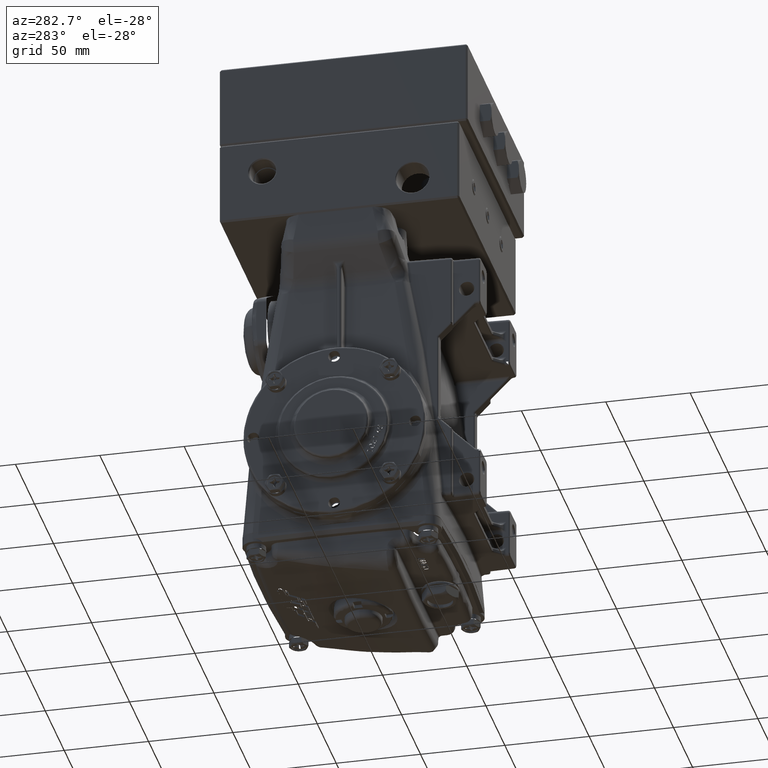
[diagram: clean part render]
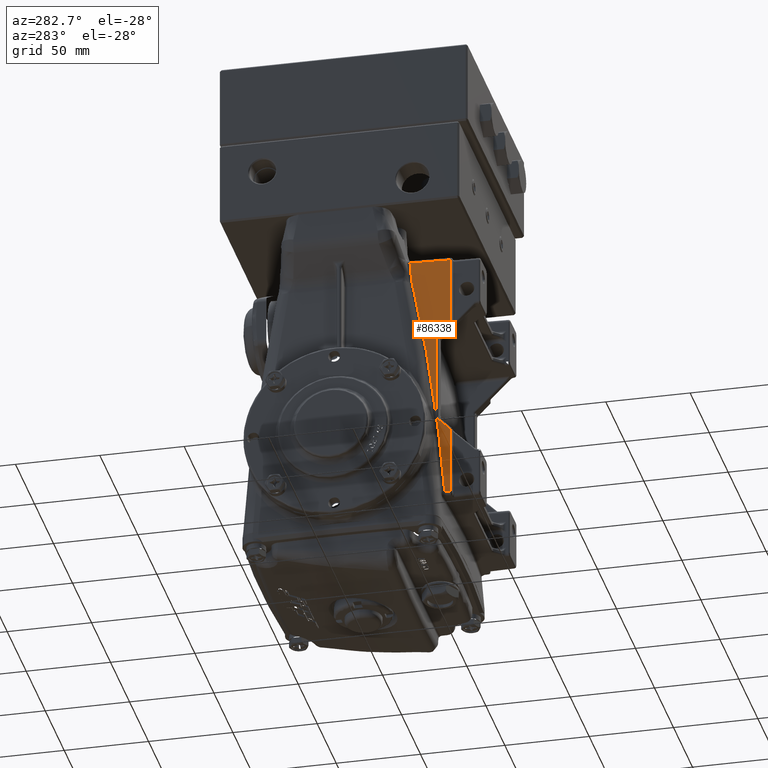
[diagram: same view with one face highlighted and labeled with its STEP entity id]
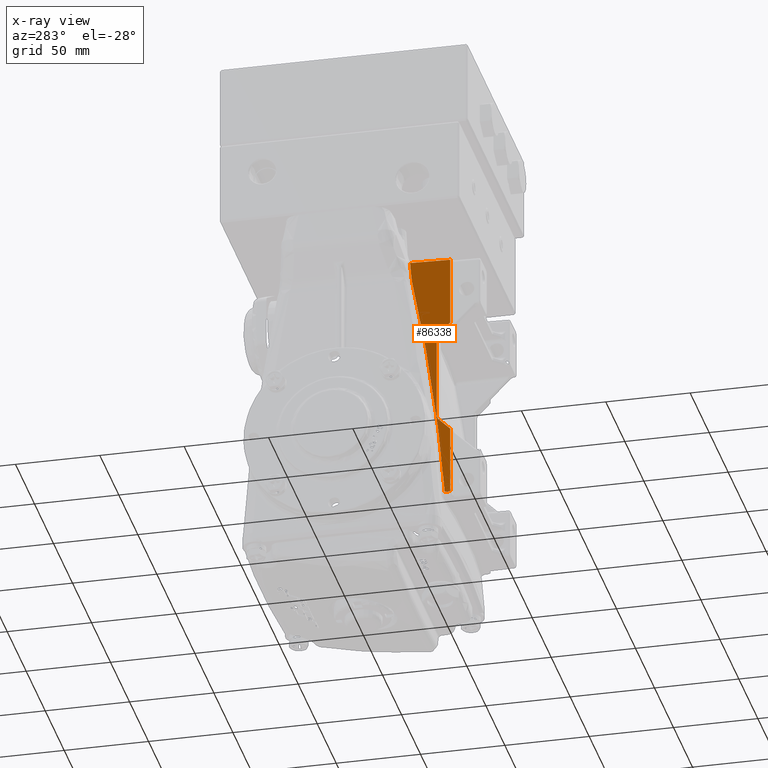
[diagram: x-ray of the same camera — body ghosted, the highlighted face saturated]
A machine part, auxiliary view. The second image highlights one B-rep face of the part: STEP entity #86338.
The next image is the same camera in x-ray: the body ghosted, the highlighted face saturated — about 0% of this face is hidden behind the body in this view.
In plain terms, the highlighted planar face has unit normal (-0.9998, -0.0175, 0).
Its self-contained STEP definition (entity closure, byte-faithful):
#1847 = CARTESIAN_POINT ( 'NONE',  ( -2.019544546098117621, -2.481002063245562717, -1.350265200022809697 ) ) ;
#2579 = CARTESIAN_POINT ( 'NONE',  ( -2.027510179900914533, -2.024651208318652085, 1.676761298908300279 ) ) ;
#4071 = VERTEX_POINT ( 'NONE', #42970 ) ;
#4995 = EDGE_CURVE ( 'NONE', #46811, #4071, #25992, .T. ) ;
#5358 = CARTESIAN_POINT ( 'NONE',  ( -2.024125852835092942, -2.218539176065493113, 0.09903116809614825877 ) ) ;
#5938 = CARTESIAN_POINT ( 'NONE',  ( -2.024830165668790816, -2.178189120846862004, 2.703559040577215189 ) ) ;
#6397 = CARTESIAN_POINT ( 'NONE',  ( -2.025042204343225016, -2.166041433324302101, 2.642488491357046332 ) ) ;
#6520 = B_SPLINE_CURVE_WITH_KNOTS ( 'NONE', 3,
 ( #51695, #5358, #84543, #24628 ),
 .UNSPECIFIED., .F., .F.,
 ( 4, 4 ),
 ( 0.000000000000000000, 0.0001516632036106965958 ),
 .UNSPECIFIED. ) ;
#8267 = EDGE_CURVE ( 'NONE', #35373, #57875, #18536, .T. ) ;
#8733 = CARTESIAN_POINT ( 'NONE',  ( -2.030912172984652209, -1.829751155083217284, 2.909074709401717751 ) ) ;
#9671 = DIRECTION ( 'NONE',  ( 0.01744974916068272111, -0.9996954598818874604, -0.01744974916068266907 ) ) ;
#9730 = ORIENTED_EDGE ( 'NONE', *, *, #63805, .F. ) ;
#10096 = CARTESIAN_POINT ( 'NONE',  ( -2.007897987981881460, -3.148232930855112688, 4.606335177339646592 ) ) ;
#10341 = B_SPLINE_CURVE_WITH_KNOTS ( 'NONE', 3,
 ( #55923, #68581, #2579, #8733, #82611, #49352 ),
 .UNSPECIFIED., .F., .F.,
 ( 4, 2, 4 ),
 ( 0.000000000000000000, 0.04753262879831760684, 0.09506525759663518593 ),
 .UNSPECIFIED. ) ;
#11300 = VERTEX_POINT ( 'NONE', #52870 ) ;
#12949 = EDGE_CURVE ( 'NONE', #86182, #53049, #6520, .T. ) ;
#14521 = ORIENTED_EDGE ( 'NONE', *, *, #75236, .F. ) ;
#14641 = LINE ( 'NONE', #81071, #22988 ) ;
#14654 = B_SPLINE_CURVE_WITH_KNOTS ( 'NONE', 3,
 ( #46122, #14663, #41281, #27748 ),
 .UNSPECIFIED., .F., .F.,
 ( 4, 4 ),
 ( 0.000000000000000000, 0.001447699820419798061 ),
 .UNSPECIFIED. ) ;
#14663 = CARTESIAN_POINT ( 'NONE',  ( -2.024723379495279474, -2.184306896630029193, 0.4008149286879045259 ) ) ;
#15291 = ORIENTED_EDGE ( 'NONE', *, *, #4995, .F. ) ;
#15346 = CARTESIAN_POINT ( 'NONE',  ( -2.024130045813914869, -2.218298960469661907, 0.1030058499135407535 ) ) ;
#16771 = ORIENTED_EDGE ( 'NONE', *, *, #29992, .F. ) ;
#16905 = CARTESIAN_POINT ( 'NONE',  ( -2.019544546098117621, -2.481002063245562717, -1.349589986162939681 ) ) ;
#16947 = ORIENTED_EDGE ( 'NONE', *, *, #37694, .F. ) ;
#17789 = CARTESIAN_POINT ( 'NONE',  ( -2.024122239692624614, -2.218746172858876875, 0.09705163386022504224 ) ) ;
#18342 = CARTESIAN_POINT ( 'NONE',  ( -2.024438369285970651, -2.200635120585733073, 0.5417114951169865744 ) ) ;
#18536 = LINE ( 'NONE', #24683, #23659 ) ;
#19448 = CARTESIAN_POINT ( 'NONE',  ( -2.035702988770760946, -1.555285502517032459, 4.551273033996241502 ) ) ;
#19519 = VERTEX_POINT ( 'NONE', #26075 ) ;
#20500 = VERTEX_POINT ( 'NONE', #24027 ) ;
#21113 = CARTESIAN_POINT ( 'NONE',  ( -2.024809047652420535, -2.179398971194454582, 0.4384979107439024859 ) ) ;
#22029 = ORIENTED_EDGE ( 'NONE', *, *, #43293, .F. ) ;
#22061 = EDGE_CURVE ( 'NONE', #4071, #19519, #79902, .T. ) ;
#22167 = DIRECTION ( 'NONE',  ( -4.382719174871368785E-18, -5.544652149419484913E-17, -1.000000000000000000 ) ) ;
#22562 = CARTESIAN_POINT ( 'NONE',  ( -2.024205908477390903, -2.213952791389914854, 0.1966205329591511619 ) ) ;
#22765 = LINE ( 'NONE', #10096, #59303 ) ;
#22988 = VECTOR ( 'NONE', #41258, 39.37007874015748143 ) ;
#23659 = VECTOR ( 'NONE', #38186, 39.37007874015748854 ) ;
#24027 = CARTESIAN_POINT ( 'NONE',  ( -2.019544546098117621, -2.481002063245562272, 0.2613445524571549883 ) ) ;
#24628 = CARTESIAN_POINT ( 'NONE',  ( -2.024130045813914869, -2.218298960469661907, 0.1030058499135407535 ) ) ;
#24683 = CARTESIAN_POINT ( 'NONE',  ( -2.006039856856115300, -3.254685191755188001, -1.336760510780807598 ) ) ;
#24728 = PLANE ( 'NONE',  #61957 ) ;
#24866 = EDGE_CURVE ( 'NONE', #78637, #80094, #14654, .T. ) ;
#25217 = ORIENTED_EDGE ( 'NONE', *, *, #62311, .F. ) ;
#25992 =( BOUNDED_CURVE ( )  B_SPLINE_CURVE ( 3, ( #26915, #5938, #79399, #6397 ),
 .UNSPECIFIED., .F., .T. ) 
 B_SPLINE_CURVE_WITH_KNOTS ( ( 4, 4 ),
 ( 5.497787143782142394, 6.283185307179586232 ),
 .UNSPECIFIED. ) 
 CURVE ( )  GEOMETRIC_REPRESENTATION_ITEM ( )  RATIONAL_B_SPLINE_CURVE ( ( 1.000000000000000000, 0.9492530216741916771, 0.9492530216741916771, 1.000000000000000000 ) ) 
 REPRESENTATION_ITEM ( '' )  );
#26075 = CARTESIAN_POINT ( 'NONE',  ( -2.025042204343225016, -2.166041433324302101, 0.6252280440760272784 ) ) ;
#26773 = B_SPLINE_CURVE_WITH_KNOTS ( 'NONE', 3,
 ( #39517, #66213, #85504, #57958, #52231, #52676, #78921, #19448, #45674, #59249 ),
 .UNSPECIFIED., .F., .F.,
 ( 4, 2, 2, 2, 4 ),
 ( 0.000000000000000000, 0.003187656264406574843, 0.006375312528813149686, 0.009562968793219724095, 0.01275062505762629937 ),
 .UNSPECIFIED. ) ;
#26915 = CARTESIAN_POINT ( 'NONE',  ( -2.024438369285970651, -2.200635120585733073, 2.726005040316087147 ) ) ;
#27098 = DIRECTION ( 'NONE',  ( 0.01234165475093670569, -0.7070529271412423489, -0.7070529271412498984 ) ) ;
#27330 = ORIENTED_EDGE ( 'NONE', *, *, #39680, .F. ) ;
#27748 = CARTESIAN_POINT ( 'NONE',  ( -2.024809047652420535, -2.179398971194454582, 0.4384979107439024859 ) ) ;
#28843 = CARTESIAN_POINT ( 'NONE',  ( -2.021813116366593110, -2.351035759607917441, -1.352533770291285187 ) ) ;
#29958 = CARTESIAN_POINT ( 'NONE',  ( -2.024666307172124480, -2.187576567833773744, 0.3820917326334498099 ) ) ;
#29992 = EDGE_CURVE ( 'NONE', #20500, #35373, #43528, .T. ) ;
#31250 = FACE_OUTER_BOUND ( 'NONE', #53160, .T. ) ;
#31788 = CARTESIAN_POINT ( 'NONE',  ( -2.024666307172124480, -2.187576567833773744, 0.3820917326334498099 ) ) ;
#33204 = LINE ( 'NONE', #84116, #39738 ) ;
#33827 = EDGE_CURVE ( 'NONE', #70924, #46811, #44413, .T. ) ;
#35361 = CARTESIAN_POINT ( 'NONE',  ( -2.022472638572481163, -2.313251757737954328, -0.8687623769942589558 ) ) ;
#35373 = VERTEX_POINT ( 'NONE', #1847 ) ;
#36234 = B_SPLINE_CURVE_WITH_KNOTS ( 'NONE', 3,
 ( #28843, #35361, #44840, #17789 ),
 .UNSPECIFIED., .F., .F.,
 ( 4, 4 ),
 ( 6.938893903907228378E-18, 0.03697252225670060594 ),
 .UNSPECIFIED. ) ;
#36510 = CARTESIAN_POINT ( 'NONE',  ( -2.024122239692624614, -2.218746172858876875, 0.09705163386022504224 ) ) ;
#36988 = DIRECTION ( 'NONE',  ( -0.01234165475093671090, 0.7070529271412422379, -0.7070529271412501204 ) ) ;
#37021 = ORIENTED_EDGE ( 'NONE', *, *, #24866, .F. ) ;
#37694 = EDGE_CURVE ( 'NONE', #19519, #51008, #78206, .T. ) ;
#38186 = DIRECTION ( 'NONE',  ( -0.01744974916068272111, 0.9996954598818874604, -0.01744974916068278356 ) ) ;
#38420 = CARTESIAN_POINT ( 'NONE',  ( -2.021813116366593110, -2.351035759607917441, -1.352533770291285187 ) ) ;
#39517 = CARTESIAN_POINT ( 'NONE',  ( -2.035070583935254529, -1.591515951278250185, 4.134508982286337897 ) ) ;
#39680 = EDGE_CURVE ( 'NONE', #53049, #78637, #42439, .T. ) ;
#39738 = VECTOR ( 'NONE', #27098, 39.37007874015748854 ) ;
#40205 = ORIENTED_EDGE ( 'NONE', *, *, #12949, .F. ) ;
#41258 = DIRECTION ( 'NONE',  ( -4.382719174871368785E-18, -5.544652149419484913E-17, -1.000000000000000000 ) ) ;
#41281 = CARTESIAN_POINT ( 'NONE',  ( -2.024771223151071720, -2.181565935425437530, 0.4196147988685192121 ) ) ;
#42439 =( BOUNDED_CURVE ( )  B_SPLINE_CURVE ( 3, ( #83354, #22562, #56670, #29958 ),
 .UNSPECIFIED., .F., .T. ) 
 B_SPLINE_CURVE_WITH_KNOTS ( ( 4, 4 ),
 ( 0.04639283067978829805, 0.1728886683575974470 ),
 .UNSPECIFIED. ) 
 CURVE ( )  GEOMETRIC_REPRESENTATION_ITEM ( )  RATIONAL_B_SPLINE_CURVE ( ( 1.000000000000000000, 0.9986670113725250042, 0.9986670113725250042, 1.000000000000000000 ) ) 
 REPRESENTATION_ITEM ( '' )  );
#42686 = CARTESIAN_POINT ( 'NONE',  ( -1.999059999529802845, -3.654560950167802691, 4.179930869898172752 ) ) ;
#42970 = CARTESIAN_POINT ( 'NONE',  ( -2.025042204343225016, -2.166041433324302101, 2.642488491357046332 ) ) ;
#43293 = EDGE_CURVE ( 'NONE', #78419, #70924, #14641, .T. ) ;
#43528 = LINE ( 'NONE', #16905, #45451 ) ;
#44413 = LINE ( 'NONE', #42686, #73553 ) ;
#44792 = DIRECTION ( 'NONE',  ( -0.01745240643728354982, 0.9998476951563912696, -5.536158772406973294E-17 ) ) ;
#44840 = CARTESIAN_POINT ( 'NONE',  ( -2.023241349687006529, -2.269212327481651137, -0.3855620298490856634 ) ) ;
#45451 = VECTOR ( 'NONE', #22167, 39.37007874015748143 ) ;
#45674 = CARTESIAN_POINT ( 'NONE',  ( -2.035773768476307310, -1.551230535902016872, 4.592909058274514678 ) ) ;
#46122 = CARTESIAN_POINT ( 'NONE',  ( -2.024666307172124480, -2.187576567833773744, 0.3820917326334498099 ) ) ;
#46811 = VERTEX_POINT ( 'NONE', #70696 ) ;
#46862 = ORIENTED_EDGE ( 'NONE', *, *, #72786, .F. ) ;
#47165 = CARTESIAN_POINT ( 'NONE',  ( -2.019544546098117177, -2.481002063245562272, 4.617981735455881420 ) ) ;
#49352 = CARTESIAN_POINT ( 'NONE',  ( -2.035070583935254529, -1.591515951278250185, 4.134508982286337897 ) ) ;
#50573 = VERTEX_POINT ( 'NONE', #77638 ) ;
#51008 = VERTEX_POINT ( 'NONE', #66013 ) ;
#51375 = CARTESIAN_POINT ( 'NONE',  ( -2.007874015748031482, -3.149606299212598159, 4.685039370078739829 ) ) ;
#51695 = CARTESIAN_POINT ( 'NONE',  ( -2.024122239692624614, -2.218746172858876875, 0.09705163386022504224 ) ) ;
#52231 = CARTESIAN_POINT ( 'NONE',  ( -2.035506776601280876, -1.566526490178004494, 4.342248327325532564 ) ) ;
#52676 = CARTESIAN_POINT ( 'NONE',  ( -2.035574124630727955, -1.562668124155075944, 4.425917860110849311 ) ) ;
#52870 = CARTESIAN_POINT ( 'NONE',  ( -2.035885979979914051, -1.544801943165829528, 4.634323169337679182 ) ) ;
#53049 = VERTEX_POINT ( 'NONE', #15346 ) ;
#53160 = EDGE_LOOP ( 'NONE', ( #57909, #46862, #14521, #37021, #27330, #40205, #9730, #79152, #16771, #25217, #16947, #82591, #15291, #61449, #22029 ) ) ;
#54642 = CARTESIAN_POINT ( 'NONE',  ( -2.019544546098117621, -2.481002063245561384, 3.006371982975918566 ) ) ;
#55923 = CARTESIAN_POINT ( 'NONE',  ( -2.024809047652420535, -2.179398971194454582, 0.4384979107439024859 ) ) ;
#56670 = CARTESIAN_POINT ( 'NONE',  ( -2.024384900858268832, -2.203698324757216831, 0.2897733321543989882 ) ) ;
#57875 = VERTEX_POINT ( 'NONE', #38420 ) ;
#57909 = ORIENTED_EDGE ( 'NONE', *, *, #58516, .F. ) ;
#57958 = CARTESIAN_POINT ( 'NONE',  ( -2.035467708730060554, -1.568764687021154902, 4.300442451014714784 ) ) ;
#58146 = CARTESIAN_POINT ( 'NONE',  ( -2.025042204343225016, -2.166041433324302101, 0.6252280440760272784 ) ) ;
#58516 = EDGE_CURVE ( 'NONE', #11300, #78419, #22765, .T. ) ;
#59249 = CARTESIAN_POINT ( 'NONE',  ( -2.035885979979914051, -1.544801943165829528, 4.634323169337679182 ) ) ;
#59303 = VECTOR ( 'NONE', #9671, 39.37007874015748143 ) ;
#61449 = ORIENTED_EDGE ( 'NONE', *, *, #33827, .F. ) ;
#61957 = AXIS2_PLACEMENT_3D ( 'NONE', #51375, #78047, #44792 ) ;
#62311 = EDGE_CURVE ( 'NONE', #51008, #20500, #33204, .T. ) ;
#63805 = EDGE_CURVE ( 'NONE', #57875, #86182, #36234, .T. ) ;
#66013 = CARTESIAN_POINT ( 'NONE',  ( -2.024438369285970651, -2.200635120585733073, 0.5417114951169865744 ) ) ;
#66213 = CARTESIAN_POINT ( 'NONE',  ( -2.035219967660943929, -1.582957763365248738, 4.175723994886460844 ) ) ;
#68581 = CARTESIAN_POINT ( 'NONE',  ( -2.026051067676749362, -2.108243691656038976, 1.058551109978490778 ) ) ;
#70696 = CARTESIAN_POINT ( 'NONE',  ( -2.024438369285970651, -2.200635120585733073, 2.726005040316087147 ) ) ;
#70924 = VERTEX_POINT ( 'NONE', #54642 ) ;
#72183 = VECTOR ( 'NONE', #73786, 39.37007874015748143 ) ;
#72786 = EDGE_CURVE ( 'NONE', #50573, #11300, #26773, .T. ) ;
#73553 = VECTOR ( 'NONE', #36988, 39.37007874015748143 ) ;
#73786 = DIRECTION ( 'NONE',  ( -4.382719174871368785E-18, -5.544652149419484913E-17, -1.000000000000000000 ) ) ;
#75236 = EDGE_CURVE ( 'NONE', #80094, #50573, #10341, .T. ) ;
#77638 = CARTESIAN_POINT ( 'NONE',  ( -2.035070583935254529, -1.591515951278250185, 4.134508982286337897 ) ) ;
#77874 = CARTESIAN_POINT ( 'NONE',  ( -2.025042204343225016, -2.166041433324302101, 4.685039370078739829 ) ) ;
#78047 = DIRECTION ( 'NONE',  ( -0.9998476951563912696, -0.01745240643728354982, 5.349726894163127653E-18 ) ) ;
#78206 =( BOUNDED_CURVE ( )  B_SPLINE_CURVE ( 3, ( #58146, #84854, #79526, #18342 ),
 .UNSPECIFIED., .F., .F. ) 
 B_SPLINE_CURVE_WITH_KNOTS ( ( 4, 4 ),
 ( 0.000000000000000000, 0.7853981633974426169 ),
 .UNSPECIFIED. ) 
 CURVE ( )  GEOMETRIC_REPRESENTATION_ITEM ( )  RATIONAL_B_SPLINE_CURVE ( ( 1.000000000000000000, 0.9492530216741918991, 0.9492530216741918991, 1.000000000000000000 ) ) 
 REPRESENTATION_ITEM ( '' )  );
#78419 = VERTEX_POINT ( 'NONE', #47165 ) ;
#78637 = VERTEX_POINT ( 'NONE', #31788 ) ;
#78921 = CARTESIAN_POINT ( 'NONE',  ( -2.035603110302397045, -1.561007536137296370, 4.467777737778649616 ) ) ;
#79152 = ORIENTED_EDGE ( 'NONE', *, *, #8267, .F. ) ;
#79399 = CARTESIAN_POINT ( 'NONE',  ( -2.025042204343225016, -2.166041433324302101, 2.674231928608780784 ) ) ;
#79526 = CARTESIAN_POINT ( 'NONE',  ( -2.024830165668790816, -2.178189120846862004, 0.5641574948558583102 ) ) ;
#79902 = LINE ( 'NONE', #77874, #72183 ) ;
#80094 = VERTEX_POINT ( 'NONE', #21113 ) ;
#81071 = CARTESIAN_POINT ( 'NONE',  ( -2.019544546098117621, -2.481002063245562272, 3.006371982975918566 ) ) ;
#82591 = ORIENTED_EDGE ( 'NONE', *, *, #22061, .F. ) ;
#82611 = CARTESIAN_POINT ( 'NONE',  ( -2.032855556174041123, -1.718414806729249733, 3.523382190082024579 ) ) ;
#83354 = CARTESIAN_POINT ( 'NONE',  ( -2.024130045813914869, -2.218298960469661907, 0.1030058499135407535 ) ) ;
#84116 = CARTESIAN_POINT ( 'NONE',  ( -2.052310451624273835, -0.6038445928549840414, 2.138502022847753814 ) ) ;
#84543 = CARTESIAN_POINT ( 'NONE',  ( -2.024128434642699759, -2.218391264406749386, 0.1010176613143911745 ) ) ;
#84854 = CARTESIAN_POINT ( 'NONE',  ( -2.025042204343225016, -2.166041433324302101, 0.5934846068242922712 ) ) ;
#85504 = CARTESIAN_POINT ( 'NONE',  ( -2.035325044590194477, -1.576937910120207897, 4.217176319505591131 ) ) ;
#86182 = VERTEX_POINT ( 'NONE', #36510 ) ;
#86338 = ADVANCED_FACE ( 'NONE', ( #31250 ), #24728, .T. ) ;